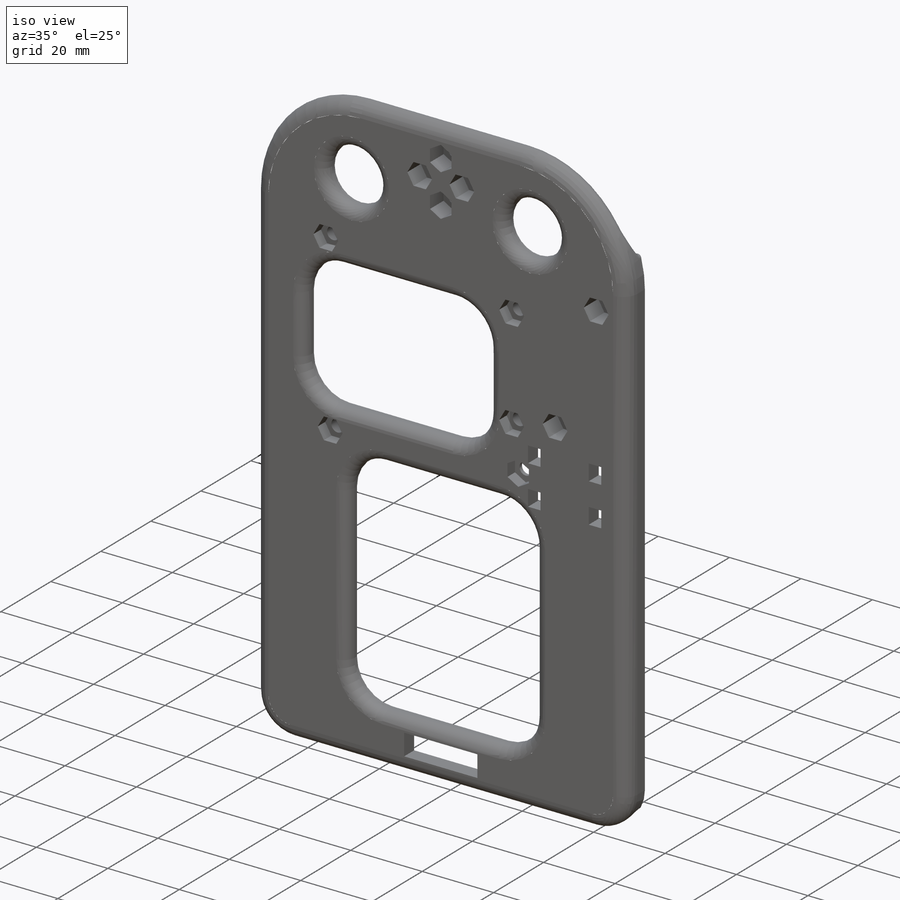
[diagram: iso view]
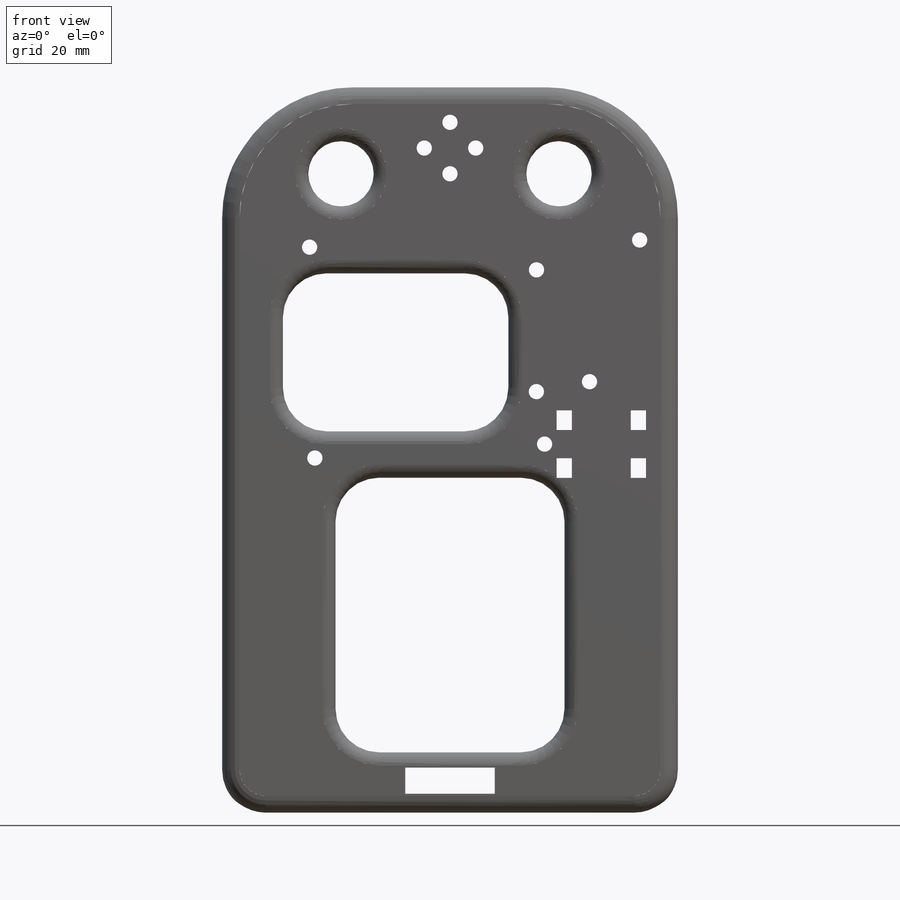
[diagram: front view]
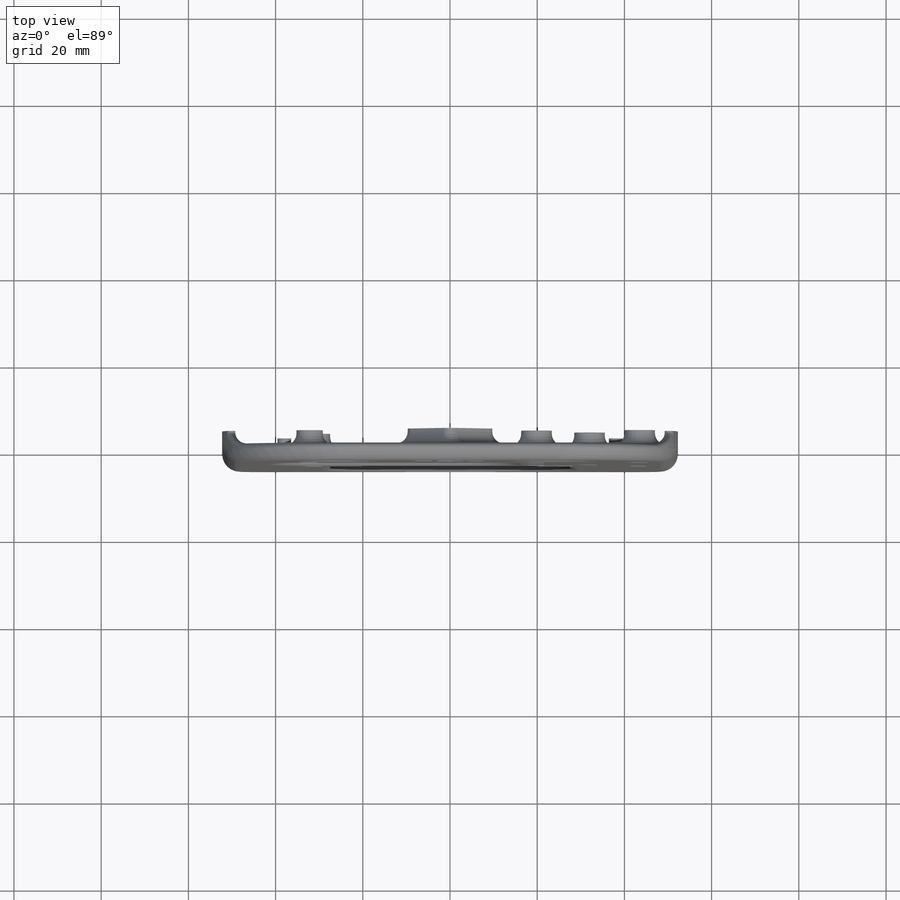
[diagram: top view]
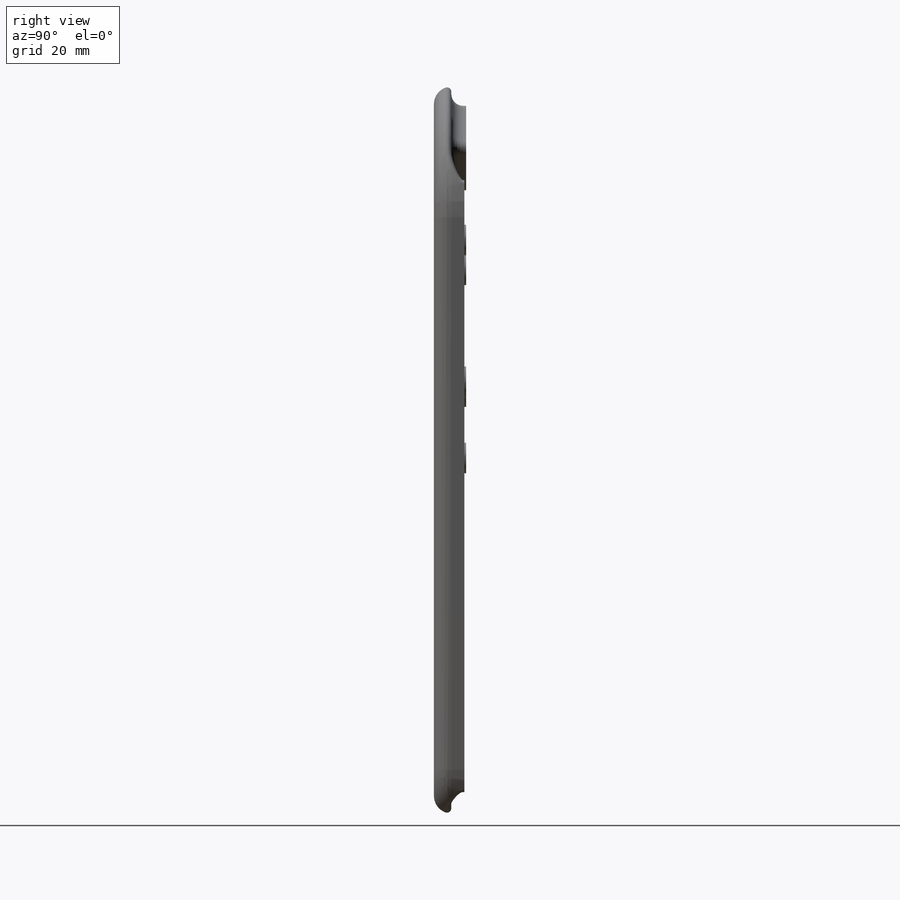
[diagram: right view]
SOLIDWORKS PART (.sldprt)
format: sldprt  version: not decoded by parser v0  size: 921,600 bytes
history: native  units: mm
features: sketch x18, cut_extrude x12, fillet x9, extrude x6, plane x3, material x1 (+10 scaffold rows collapsed)
feature tree (59):
  scaffold x10  (default folders/planes/origin — collapsed)
  material  "Материал <не указан>"
  plane  "Спереди"
  plane  "Сверху"
  plane  "Справа"
  sketch  "Эскиз1"  dims[c1.D2=3.5mm c1.D6=2.0mm c1.D7=6.0mm c1.D9=7.0mm c1.D10=6.0mm c2.D7=6.0mm c2.D13=3.5mm c2.D9=7.0mm c2.D14=6.0mm c2.D1=3.0mm c2.D2=3.0mm c2.D3=4.0mm c3.D2=4.0mm c3.D4=3.0mm c3.D5=3.0mm c3.D8=4.0mm c3.D11=17.0mm c4.D2=3.0mm c4.D3=3.0mm c4.D12=0.2mm]
  extrude  "Бобышка-Вытянуть1"  Depth=4mm
  sketch  "Эскиз2"
  extrude  "Бобышка-Вытянуть2"  Depth=3mm
  fillet  "Скругление1"  Radius=5mm
  fillet  "Скругление2"  Radius=3mm
  extrude  "Бобышка-Вытянуть3"  [1 undecoded]
  sketch  "Эскиз1<3>"
  cut_extrude  "Вырез-Вытянуть1"  [1 undecoded]
  sketch  "Эскиз1<4>"
  extrude  "Бобышка-Вытянуть4"  [1 undecoded]
  sketch  "Эскиз1<6>"  dims[D1=3.0mm]
  extrude  "Бобышка-Вытянуть6"  [1 undecoded]
  sketch  "Эскиз1<7>"
  cut_extrude  "Вырез-Вытянуть3"  [1 undecoded]
  sketch  "Эскиз1<8>"  dims[D1=3.0mm]
  cut_extrude  "Вырез-Вытянуть4"  [1 undecoded]
  sketch  "Эскиз1<9>"  dims[D1=3.0mm]
  fillet  "Скругление3"  Radius=2.7mm
  extrude  "Бобышка-Вытянуть7"  [1 undecoded]
  sketch  "Эскиз1<10>"  dims[D1=3.0mm]
  sketch  "Эскиз3"  dims[D1=10.0mm D2=10.0mm D4=15.0mm D3=20.0mm D5=50.0mm D6=3.0mm D7=3.0mm D8=3.0mm]
  cut_extrude  "окна"  [1 undecoded]
  fillet  "Скругление5"  Radius=3mm
  fillet  "Скругление6"  Radius=10mm
  fillet  "Скругление7"  Radius=30mm
  fillet  "Скругление4"  Radius=4mm
  fillet  "Скругление9"  Radius=1mm
  sketch  "Эскиз5"  dims[D1=6.0mm D2=20.5mm D3=4.0mm D4=1.0mm]
  cut_extrude  "Вырез-Вытянуть6"  [1 undecoded]
  sketch  "Эскиз6"  dims[D1=1.5mm D2=3.0mm D3=2.0mm]
  cut_extrude  "Вырез-Вытянуть7"  Depth=14mm
  cut_extrude  "Вырез-Вытянуть8"  [1 undecoded]
  sketch  "Эскиз6<3>"  dims[D1=1.0mm D19=5.0mm]
  sketch  "Эскиз7"  dims[D1=0.25mm]
  cut_extrude  "Вырез-Вытянуть9"  Depth=4mm
  cut_extrude  "Вырез-Вытянуть10"  [1 undecoded]
  sketch  "Эскиз1<11>"  dims[D1=2.0mm]
  sketch  "Эскиз8"  dims[c1.D1=3.5mm c1.D2=6.0mm c1.D3=13.0mm c2.D3=~1.078444deg c3.D3=0.5mm c3.D4=3.0mm]
  fillet  "Скругление10"  Radius=2.7mm
  cut_extrude  "Вырез-Вытянуть11"  [1 undecoded]
  cut_extrude  "Вырез-Вытянуть12"  [1 undecoded]
  sketch  "Эскиз8<3>"  dims[D1=3.0mm]
  cut_extrude  "Вырез-Вытянуть13"  [1 undecoded]
  sketch  "Эскиз1<12>"  dims[D1=1.6mm]
decode coverage: 27 of 45 modeling features carry decoded parameters
note: ~ marks probable driven/reference dimensions
note: 14 parameter values undecoded
summary: no parameter record found for 14 features
note: suppression state not decoded; provenance and decode notes live in map.json
